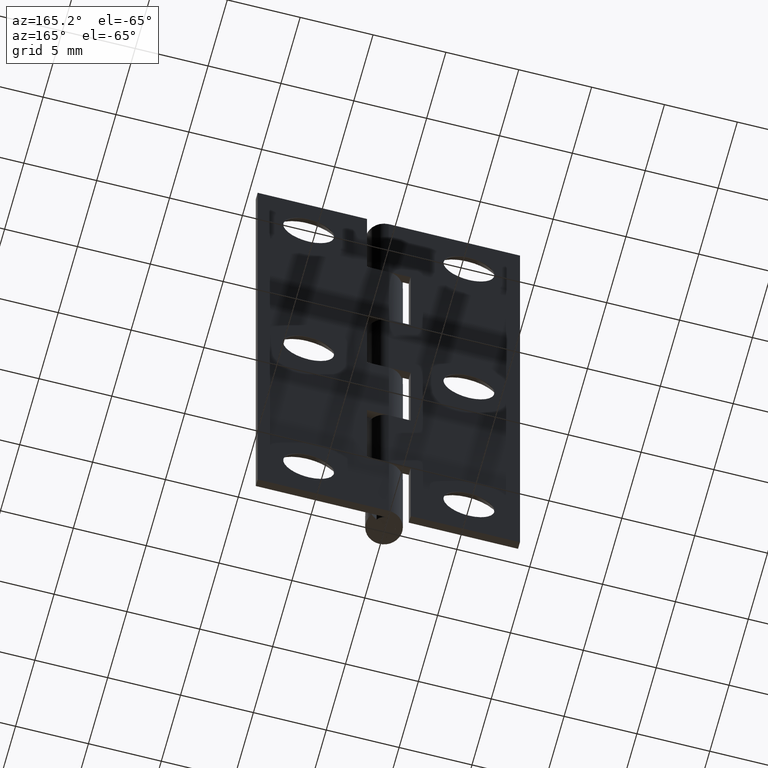
[diagram: clean part render]
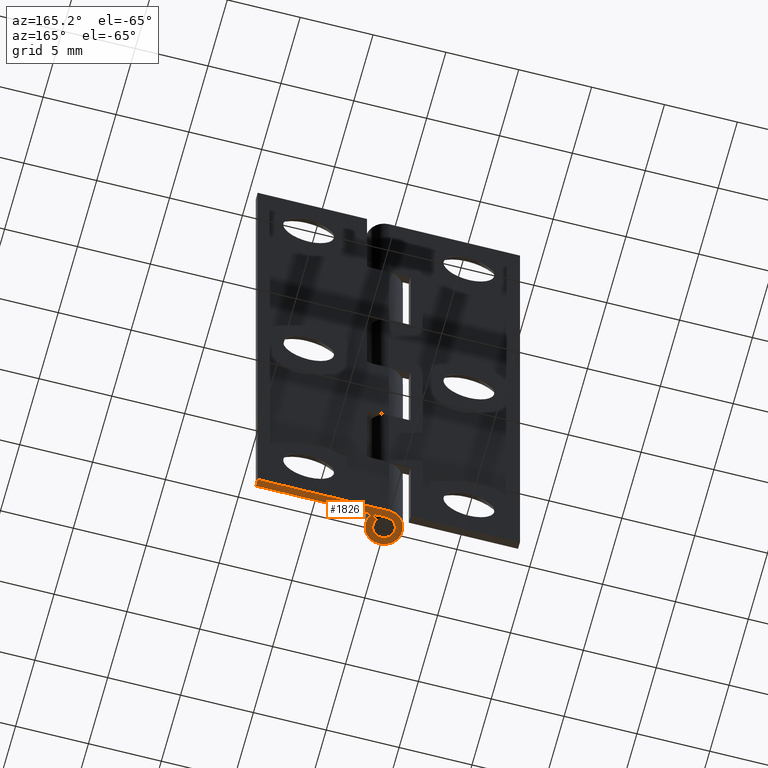
[diagram: same view with one face highlighted and labeled with its STEP entity id]
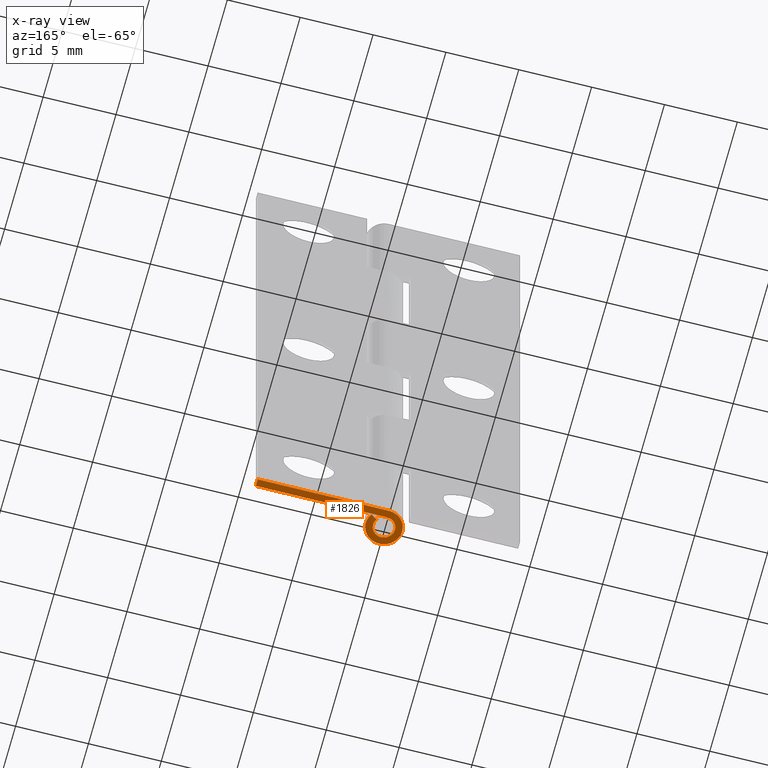
[diagram: x-ray of the same camera — body ghosted, the highlighted face saturated]
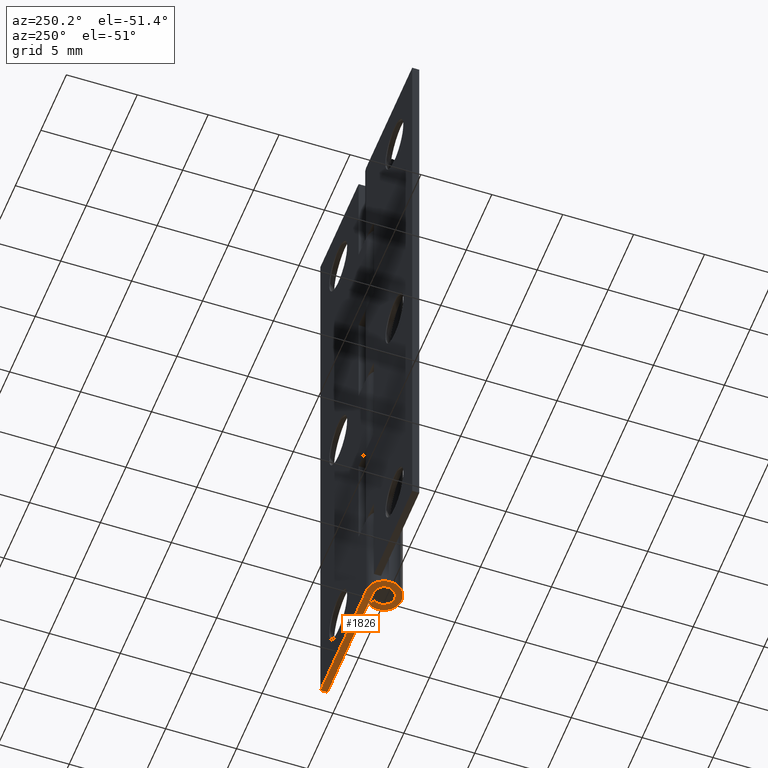
[diagram: same view with one face highlighted and labeled with its STEP entity id]
A machine part, auxiliary view. The second image highlights one B-rep face of the part: STEP entity #1826.
The next image is the same camera in x-ray: the body ghosted, the highlighted face saturated — about 0% of this face is hidden behind the body in this view.
A second angle (auxiliary view) of the same face is appended — the face is thin or edge-on in the first view.
In plain terms, the highlighted face is a freeform B-spline surface patch.
Its self-contained STEP definition (entity closure, byte-faithful):
#1749=CARTESIAN_POINT('',(-1.761691954985388,-1.373691824639077,0.0));
#1750=CARTESIAN_POINT('',(9.511973695829944,-1.373691824639077,0.0));
#1751=CARTESIAN_POINT('',(-1.761691954985388,1.374818774389556,0.0));
#1752=CARTESIAN_POINT('',(9.511973695829944,1.374818774389556,0.0));
#1753=B_SPLINE_SURFACE_WITH_KNOTS('',1,1,((#1749,#1751),(#1750,#1752)),.UNSPECIFIED.,.F.,.F.,.U.,(2,2),(2,2),(0.0,11.273665650815330),(0.0,2.748510599028633),.UNSPECIFIED.);
#1754=CARTESIAN_POINT('',(0.621369455316238,0.420000000000000,0.0));
#1755=VERTEX_POINT('',#1754);
#1756=CARTESIAN_POINT('',(0.0,0.750000000000000,0.0));
#1757=VERTEX_POINT('',#1756);
#1758=CARTESIAN_POINT('',(0.621369455316239,0.420000000000001,0.0));
#1759=CARTESIAN_POINT('',(0.949591762138205,-0.065588847649056,0.0));
#1760=CARTESIAN_POINT('',(0.557725015508411,-0.501440731369264,0.0));
#1761=CARTESIAN_POINT('',(0.165858268878617,-0.937292615089472,0.0));
#1762=CARTESIAN_POINT('',(-0.351781181986756,-0.662382064974589,0.0));
#1763=CARTESIAN_POINT('',(-0.869420632852130,-0.387471514859706,0.0));
#1764=CARTESIAN_POINT('',(-0.727765947517106,0.181264242570147,0.0));
#1765=CARTESIAN_POINT('',(-0.586111262182082,0.750000000000000,0.0));
#1766=CARTESIAN_POINT('',(0.0,0.750000000000000,0.0));
#1774=(BOUNDED_CURVE()B_SPLINE_CURVE(2,(#1758,#1759,#1760,#1761,#1762,#1763,#1764,#1765,#1766),.UNSPECIFIED.,.F.,.U.)B_SPLINE_CURVE_WITH_KNOTS((3,2,2,2,3),(0.0,0.250000000000000,0.500000000000000,0.750000000000000,1.0),.UNSPECIFIED.)CURVE()GEOMETRIC_REPRESENTATION_ITEM()RATIONAL_B_SPLINE_CURVE((1.0,0.787935802194632,1.0,0.787935802194632,1.0,0.787935802194632,1.0,0.787935802194632,1.0))REPRESENTATION_ITEM(''));
#1775=EDGE_CURVE('',#1755,#1757,#1774,.T.);
#1776=ORIENTED_EDGE('',*,*,#1775,.F.);
#1777=CARTESIAN_POINT('',(1.035615758860396,0.700000000000000,0.0));
#1778=VERTEX_POINT('',#1777);
#1779=CARTESIAN_POINT('',(1.035615758860396,0.700000000000000,0.0));
#1780=CARTESIAN_POINT('',(0.621369455316238,0.420000000000000,0.0));
#1781=QUASI_UNIFORM_CURVE('',1,(#1779,#1780),.UNSPECIFIED.,.F.,.U.);
#1782=EDGE_CURVE('',#1778,#1755,#1781,.T.);
#1783=ORIENTED_EDGE('',*,*,#1782,.F.);
#1784=CARTESIAN_POINT('',(0.0,1.250000000000000,0.0));
#1785=VERTEX_POINT('',#1784);
#1786=CARTESIAN_POINT('',(1.035615758860396,0.700000000000000,0.0));
#1787=CARTESIAN_POINT('',(1.582652936897009,-0.109314746081761,0.0));
#1788=CARTESIAN_POINT('',(0.929541692514019,-0.835734552282107,0.0));
#1789=CARTESIAN_POINT('',(0.276430448131029,-1.562154358482453,0.0));
#1790=CARTESIAN_POINT('',(-0.586301969977927,-1.103970108290982,0.0));
#1791=CARTESIAN_POINT('',(-1.449034388086884,-0.645785858099510,0.0));
#1792=CARTESIAN_POINT('',(-1.212943245861843,0.302107070950246,0.0));
#1793=CARTESIAN_POINT('',(-0.976852103636803,1.250000000000000,0.0));
#1794=CARTESIAN_POINT('',(0.0,1.250000000000000,0.0));
#1802=(BOUNDED_CURVE()B_SPLINE_CURVE(2,(#1786,#1787,#1788,#1789,#1790,#1791,#1792,#1793,#1794),.UNSPECIFIED.,.F.,.U.)B_SPLINE_CURVE_WITH_KNOTS((3,2,2,2,3),(0.0,0.250000000000000,0.500000000000000,0.750000000000000,1.0),.UNSPECIFIED.)CURVE()GEOMETRIC_REPRESENTATION_ITEM()RATIONAL_B_SPLINE_CURVE((1.0,0.787935802194633,1.0,0.787935802194633,1.0,0.787935802194633,1.0,0.787935802194633,1.0))REPRESENTATION_ITEM(''));
#1803=EDGE_CURVE('',#1778,#1785,#1802,.T.);
#1804=ORIENTED_EDGE('',*,*,#1803,.T.);
#1805=CARTESIAN_POINT('',(9.0,1.250000000000000,0.0));
#1806=VERTEX_POINT('',#1805);
#1807=CARTESIAN_POINT('',(9.0,1.250000000000000,0.0));
#1808=CARTESIAN_POINT('',(0.0,1.250000000000000,0.0));
#1809=QUASI_UNIFORM_CURVE('',1,(#1807,#1808),.UNSPECIFIED.,.F.,.U.);
#1810=EDGE_CURVE('',#1806,#1785,#1809,.T.);
#1811=ORIENTED_EDGE('',*,*,#1810,.F.);
#1812=CARTESIAN_POINT('',(9.0,0.750000000000000,0.0));
#1813=VERTEX_POINT('',#1812);
#1814=CARTESIAN_POINT('',(9.0,0.750000000000000,0.0));
#1815=CARTESIAN_POINT('',(9.0,1.250000000000000,0.0));
#1816=QUASI_UNIFORM_CURVE('',1,(#1814,#1815),.UNSPECIFIED.,.F.,.U.);
#1817=EDGE_CURVE('',#1813,#1806,#1816,.T.);
#1818=ORIENTED_EDGE('',*,*,#1817,.F.);
#1819=CARTESIAN_POINT('',(0.0,0.750000000000000,0.0));
#1820=CARTESIAN_POINT('',(9.0,0.750000000000000,0.0));
#1821=QUASI_UNIFORM_CURVE('',1,(#1819,#1820),.UNSPECIFIED.,.F.,.U.);
#1822=EDGE_CURVE('',#1757,#1813,#1821,.T.);
#1823=ORIENTED_EDGE('',*,*,#1822,.F.);
#1824=EDGE_LOOP('',(#1776,#1783,#1804,#1811,#1818,#1823));
#1825=FACE_OUTER_BOUND('',#1824,.T.);
#1826=ADVANCED_FACE('',(#1825),#1753,.F.);